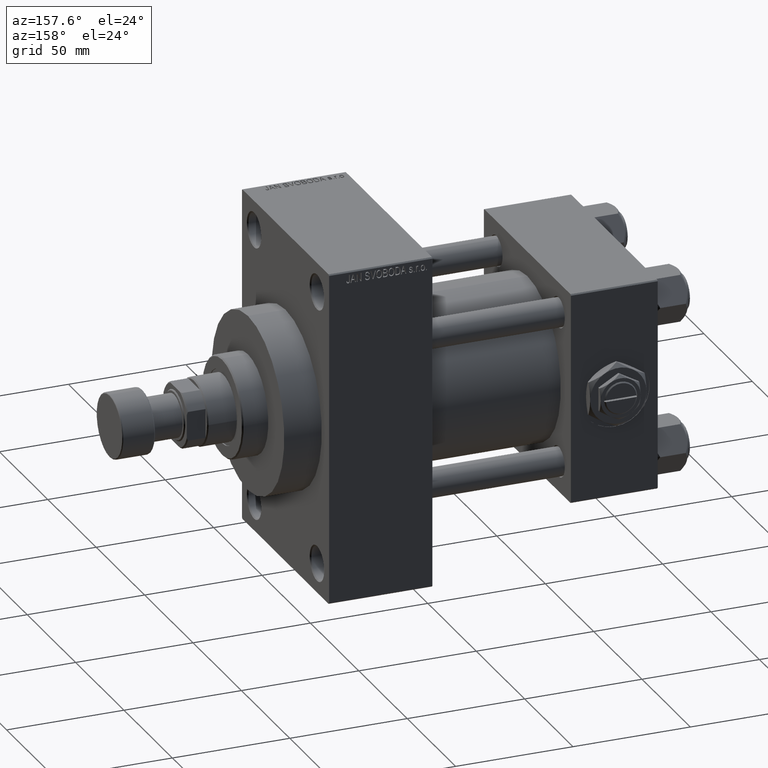
[diagram: clean part render]
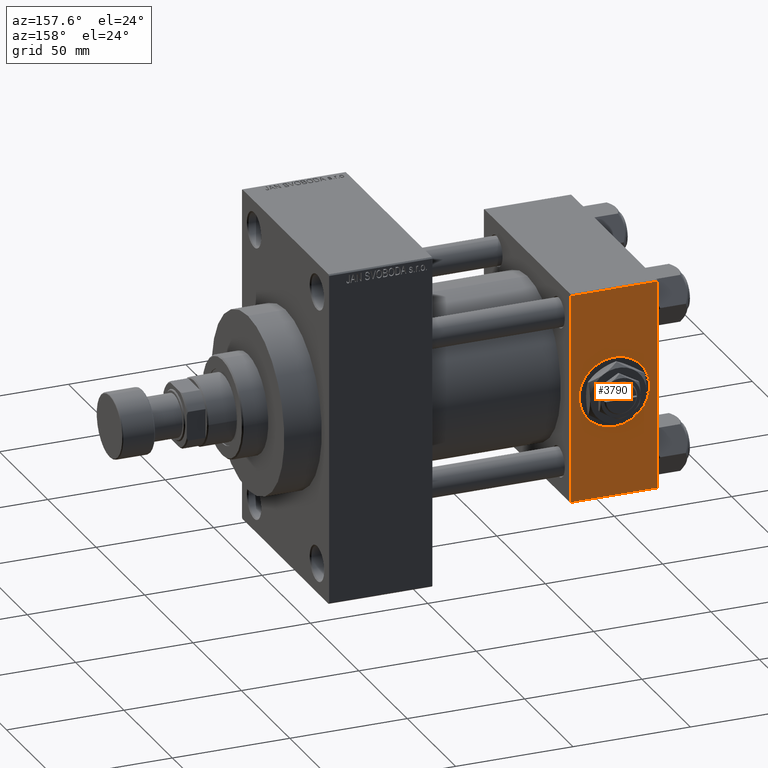
[diagram: same view with one face highlighted and labeled with its STEP entity id]
A machine part, auxiliary view. The second image highlights one B-rep face of the part: STEP entity #3790.
In plain terms, the highlighted planar face has unit normal (0, 1, 0).
Its self-contained STEP definition (entity closure, byte-faithful):
#99 = EDGE_CURVE ( 'NONE', #25398, #22951, #8410, .T. ) ;
#1177 = VERTEX_POINT ( 'NONE', #45323 ) ;
#1376 = DIRECTION ( 'NONE',  ( 0.000000000000000000, 1.000000000000000000, 0.000000000000000000 ) ) ;
#3790 = ADVANCED_FACE ( 'NONE', ( #13628, #24885 ), #24643, .T. ) ;
#6284 = CARTESIAN_POINT ( 'NONE',  ( 0.000000000000000000, 44.99999999999998579, -44.49999999999995737 ) ) ;
#7234 = ORIENTED_EDGE ( 'NONE', *, *, #30120, .T. ) ;
#8185 = LINE ( 'NONE', #31179, #37862 ) ;
#8410 = CIRCLE ( 'NONE', #18768, 15.00000000000000178 ) ;
#8901 = LINE ( 'NONE', #31649, #38434 ) ;
#9562 = AXIS2_PLACEMENT_3D ( 'NONE', #32405, #28893, #17627 ) ;
#10134 = DIRECTION ( 'NONE',  ( 0.000000000000000000, 0.000000000000000000, -1.000000000000000000 ) ) ;
#11846 = DIRECTION ( 'NONE',  ( -1.000000000000000000, 0.000000000000000000, 0.000000000000000000 ) ) ;
#13416 = CARTESIAN_POINT ( 'NONE',  ( 18.50000000000000355, 44.99999999999998579, -15.00000000000000178 ) ) ;
#13628 = FACE_BOUND ( 'NONE', #44260, .T. ) ;
#14956 = CARTESIAN_POINT ( 'NONE',  ( 18.50000000000000000, 44.99999999999998579, 0.000000000000000000 ) ) ;
#15952 = ORIENTED_EDGE ( 'NONE', *, *, #99, .F. ) ;
#16589 = DIRECTION ( 'NONE',  ( 0.000000000000000000, 0.000000000000000000, 1.000000000000000000 ) ) ;
#17485 = EDGE_CURVE ( 'NONE', #1177, #38781, #33859, .T. ) ;
#17627 = DIRECTION ( 'NONE',  ( 0.000000000000000000, -0.000000000000000000, 1.000000000000000000 ) ) ;
#17935 = ORIENTED_EDGE ( 'NONE', *, *, #20789, .F. ) ;
#18768 = AXIS2_PLACEMENT_3D ( 'NONE', #47347, #1376, #16589 ) ;
#20627 = DIRECTION ( 'NONE',  ( 1.000000000000000000, 0.000000000000000000, 0.000000000000000000 ) ) ;
#20789 = EDGE_CURVE ( 'NONE', #22951, #25398, #49022, .T. ) ;
#22946 = DIRECTION ( 'NONE',  ( 0.000000000000000000, 1.000000000000000000, 0.000000000000000000 ) ) ;
#22951 = VERTEX_POINT ( 'NONE', #13416 ) ;
#24259 = AXIS2_PLACEMENT_3D ( 'NONE', #14956, #22946, #48719 ) ;
#24643 = PLANE ( 'NONE',  #9562 ) ;
#24885 = FACE_OUTER_BOUND ( 'NONE', #27788, .T. ) ;
#25398 = VERTEX_POINT ( 'NONE', #33270 ) ;
#27006 = VERTEX_POINT ( 'NONE', #45085 ) ;
#27611 = LINE ( 'NONE', #30600, #46051 ) ;
#27788 = EDGE_LOOP ( 'NONE', ( #48585, #42077, #28446, #7234 ) ) ;
#28446 = ORIENTED_EDGE ( 'NONE', *, *, #40030, .F. ) ;
#28893 = DIRECTION ( 'NONE',  ( -0.000000000000000000, 1.000000000000000000, 0.000000000000000000 ) ) ;
#29130 = CARTESIAN_POINT ( 'NONE',  ( 37.00000000000000000, 44.99999999999998579, 45.00000000000001421 ) ) ;
#30120 = EDGE_CURVE ( 'NONE', #27006, #1177, #8901, .T. ) ;
#30600 = CARTESIAN_POINT ( 'NONE',  ( 37.00000000000000000, 44.99999999999998579, -44.49999999999998579 ) ) ;
#31179 = CARTESIAN_POINT ( 'NONE',  ( 0.000000000000000000, 44.99999999999998579, 45.00000000000001421 ) ) ;
#31649 = CARTESIAN_POINT ( 'NONE',  ( 37.00000000000000000, 44.99999999999998579, 44.50000000000001421 ) ) ;
#32405 = CARTESIAN_POINT ( 'NONE',  ( 37.00000000000000000, 44.99999999999998579, 45.00000000000001421 ) ) ;
#33270 = CARTESIAN_POINT ( 'NONE',  ( 18.50000000000000000, 44.99999999999998579, 15.00000000000000178 ) ) ;
#33859 = LINE ( 'NONE', #29130, #48999 ) ;
#36013 = VERTEX_POINT ( 'NONE', #6284 ) ;
#37862 = VECTOR ( 'NONE', #46430, 1000.000000000000000 ) ;
#38434 = VECTOR ( 'NONE', #20627, 1000.000000000000000 ) ;
#38781 = VERTEX_POINT ( 'NONE', #45007 ) ;
#40030 = EDGE_CURVE ( 'NONE', #27006, #36013, #8185, .T. ) ;
#42077 = ORIENTED_EDGE ( 'NONE', *, *, #48713, .T. ) ;
#44260 = EDGE_LOOP ( 'NONE', ( #15952, #17935 ) ) ;
#45007 = CARTESIAN_POINT ( 'NONE',  ( 37.00000000000000000, 44.99999999999998579, -44.49999999999995737 ) ) ;
#45085 = CARTESIAN_POINT ( 'NONE',  ( 0.000000000000000000, 44.99999999999998579, 44.50000000000001421 ) ) ;
#45323 = CARTESIAN_POINT ( 'NONE',  ( 37.00000000000000000, 44.99999999999998579, 44.50000000000001421 ) ) ;
#46051 = VECTOR ( 'NONE', #11846, 1000.000000000000000 ) ;
#46430 = DIRECTION ( 'NONE',  ( 0.000000000000000000, 0.000000000000000000, -1.000000000000000000 ) ) ;
#47347 = CARTESIAN_POINT ( 'NONE',  ( 18.50000000000000000, 44.99999999999998579, 0.000000000000000000 ) ) ;
#48585 = ORIENTED_EDGE ( 'NONE', *, *, #17485, .T. ) ;
#48713 = EDGE_CURVE ( 'NONE', #38781, #36013, #27611, .T. ) ;
#48719 = DIRECTION ( 'NONE',  ( 0.000000000000000000, 0.000000000000000000, 1.000000000000000000 ) ) ;
#48999 = VECTOR ( 'NONE', #10134, 1000.000000000000000 ) ;
#49022 = CIRCLE ( 'NONE', #24259, 15.00000000000000178 ) ;